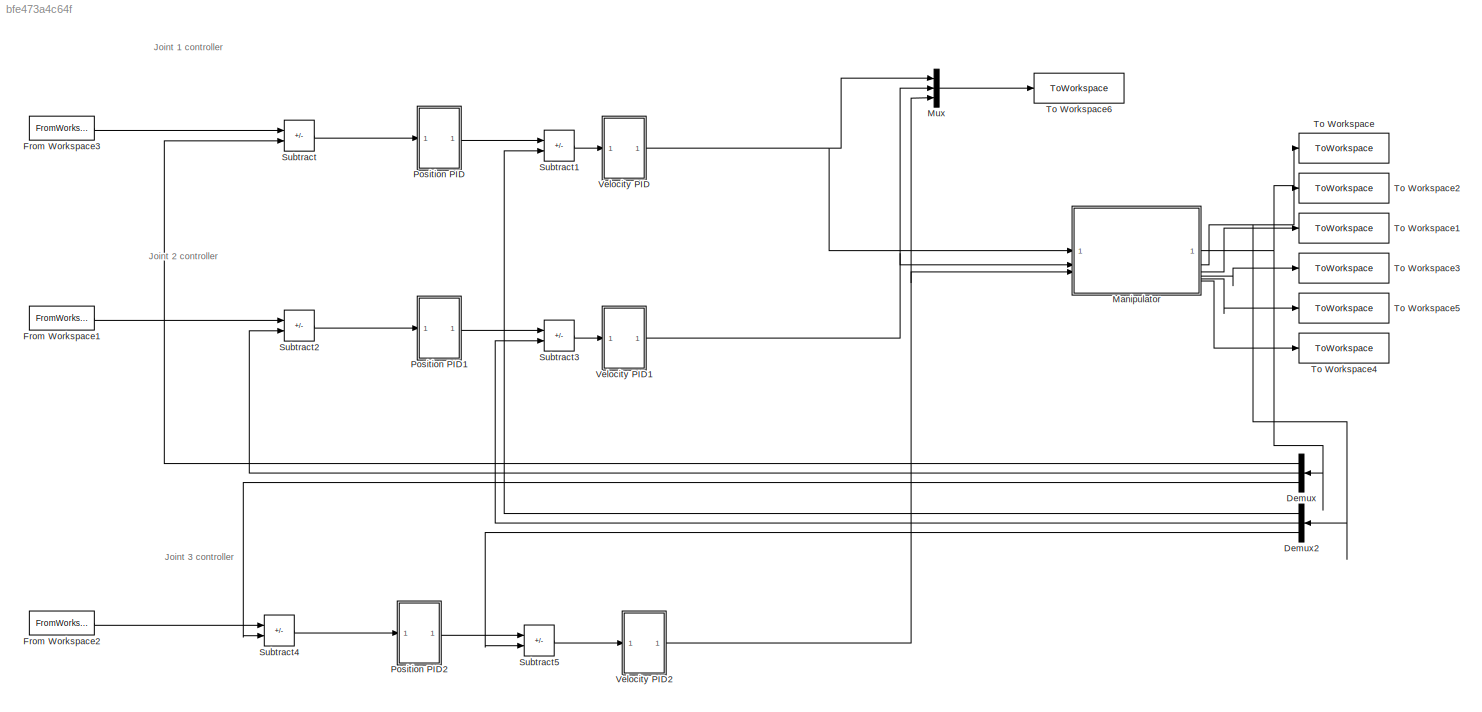
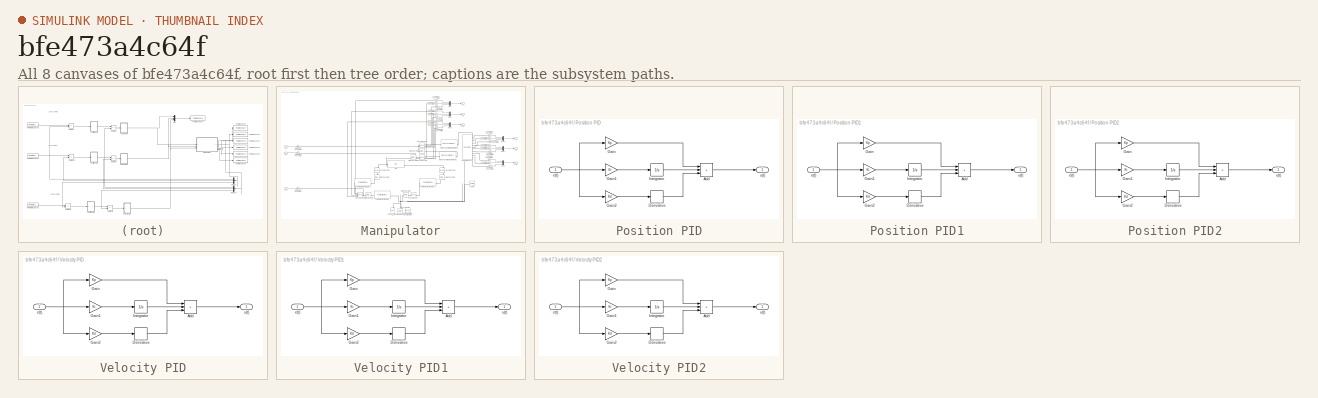
[diagram: thumbnail index - all 8 canvases of the model, root first then tree order]
MODEL slx_bfe473a4c64f
KIND model
CONFIG AbsTol = auto
CONFIG EnableMultiTasking = off
CONFIG FixedStep = dT
CONFIG MaxStep = auto
CONFIG MinStep = auto
CONFIG RelTol = 1e-3
CONFIG SampleTimeConstraint = Unconstrained
CONFIG SolverName = FixedStepAuto
CONFIG StartTime = 0.0
CONFIG StopTime = tt(end)
BLOCK [Demux] Demux
  NameLocation = top
  Outputs = 3
BLOCK [Demux] Demux2
  NameLocation = top
  Outputs = 3
BLOCK [FromWorkspace] From Workspace1
  VariableName = Q2sim
BLOCK [FromWorkspace] From Workspace2
  VariableName = Q3sim
BLOCK [FromWorkspace] From Workspace3
  VariableName = Q1sim
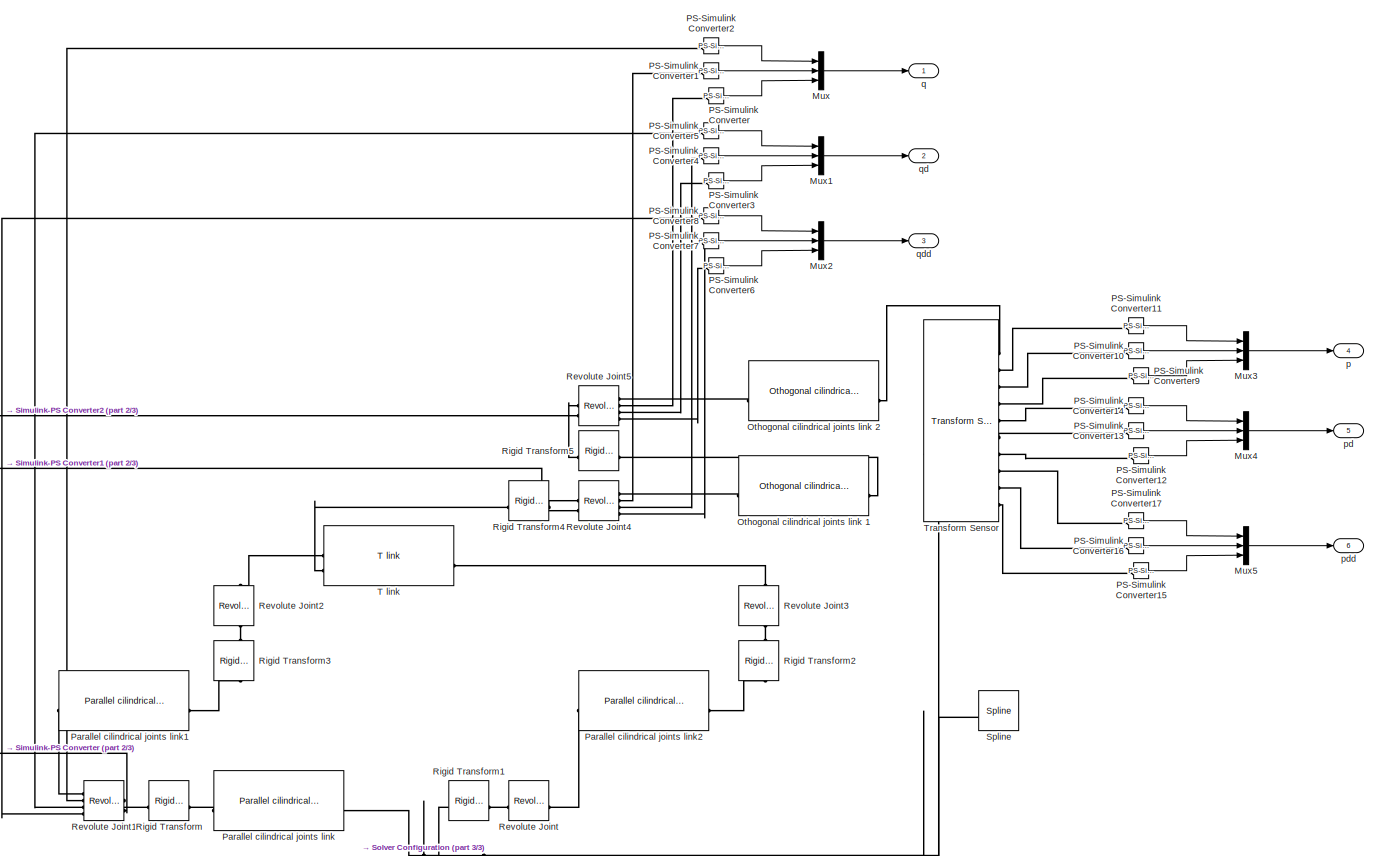
[diagram: Manipulator - part 1/3, center side, full height]
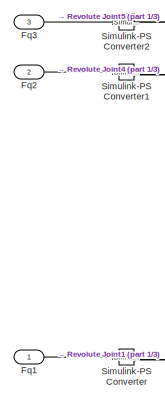
[diagram: Manipulator - part 2/3, middle left region]
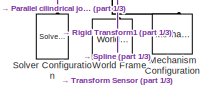
[diagram: Manipulator - part 3/3, bottom center region]
BLOCK [SubSystem] Manipulator
BLOCK [Inport] Manipulator/Fq1
BLOCK [Inport] Manipulator/Fq2
  Port = 2
BLOCK [Inport] Manipulator/Fq3
  Port = 3
BLOCK [Reference] Manipulator/Mechanism Configuration  REF=sm_lib/Utilities/Mechanism
Configuration
  NameLocation = right
  SourceBlock = sm_lib/Utilities/Mechanism\nConfiguration
  SourceType = Mechanism\nConfiguration
BLOCK [Mux] Manipulator/Mux
  DisplayOption = bar
  Inputs = 3
BLOCK [Mux] Manipulator/Mux1
  DisplayOption = bar
  Inputs = 3
BLOCK [Mux] Manipulator/Mux2
  DisplayOption = bar
  Inputs = 3
BLOCK [Mux] Manipulator/Mux3
  DisplayOption = bar
  Inputs = 3
BLOCK [Mux] Manipulator/Mux4
  DisplayOption = bar
  Inputs = 3
BLOCK [Mux] Manipulator/Mux5
  DisplayOption = bar
  Inputs = 3
BLOCK [Reference] Manipulator/Othogonal cilindrical joints link 1  REF=proj_lib/Othogonal cilindrical joints link2  (lib defined in slx_351c6c5c5e1b)
  SourceBlock = proj_lib/Othogonal cilindrical joints link2
BLOCK [Reference] Manipulator/Othogonal cilindrical joints link 2  REF=proj_lib/Othogonal cilindrical joints link2  (lib defined in slx_351c6c5c5e1b)
  SourceBlock = proj_lib/Othogonal cilindrical joints link2
BLOCK [Reference] Manipulator/PS-Simulink Converter  REF=nesl_utility/PS-Simulink
Converter
  SourceBlock = nesl_utility/PS-Simulink\nConverter
  SourceType = PS-Simulink\nConverter
BLOCK [Reference] Manipulator/PS-Simulink Converter1  REF=nesl_utility/PS-Simulink
Converter
  SourceBlock = nesl_utility/PS-Simulink\nConverter
  SourceType = PS-Simulink\nConverter
BLOCK [Reference] Manipulator/PS-Simulink Converter10  REF=nesl_utility/PS-Simulink
Converter
  SourceBlock = nesl_utility/PS-Simulink\nConverter
  SourceType = PS-Simulink\nConverter
BLOCK [Reference] Manipulator/PS-Simulink Converter11  REF=nesl_utility/PS-Simulink
Converter
  SourceBlock = nesl_utility/PS-Simulink\nConverter
  SourceType = PS-Simulink\nConverter
BLOCK [Reference] Manipulator/PS-Simulink Converter12  REF=nesl_utility/PS-Simulink
Converter
  SourceBlock = nesl_utility/PS-Simulink\nConverter
  SourceType = PS-Simulink\nConverter
BLOCK [Reference] Manipulator/PS-Simulink Converter13  REF=nesl_utility/PS-Simulink
Converter
  SourceBlock = nesl_utility/PS-Simulink\nConverter
  SourceType = PS-Simulink\nConverter
BLOCK [Reference] Manipulator/PS-Simulink Converter14  REF=nesl_utility/PS-Simulink
Converter
  SourceBlock = nesl_utility/PS-Simulink\nConverter
  SourceType = PS-Simulink\nConverter
BLOCK [Reference] Manipulator/PS-Simulink Converter15  REF=nesl_utility/PS-Simulink
Converter
  SourceBlock = nesl_utility/PS-Simulink\nConverter
  SourceType = PS-Simulink\nConverter
BLOCK [Reference] Manipulator/PS-Simulink Converter16  REF=nesl_utility/PS-Simulink
Converter
  SourceBlock = nesl_utility/PS-Simulink\nConverter
  SourceType = PS-Simulink\nConverter
BLOCK [Reference] Manipulator/PS-Simulink Converter17  REF=nesl_utility/PS-Simulink
Converter
  SourceBlock = nesl_utility/PS-Simulink\nConverter
  SourceType = PS-Simulink\nConverter
BLOCK [Reference] Manipulator/PS-Simulink Converter2  REF=nesl_utility/PS-Simulink
Converter
  SourceBlock = nesl_utility/PS-Simulink\nConverter
  SourceType = PS-Simulink\nConverter
BLOCK [Reference] Manipulator/PS-Simulink Converter3  REF=nesl_utility/PS-Simulink
Converter
  SourceBlock = nesl_utility/PS-Simulink\nConverter
  SourceType = PS-Simulink\nConverter
BLOCK [Reference] Manipulator/PS-Simulink Converter4  REF=nesl_utility/PS-Simulink
Converter
  SourceBlock = nesl_utility/PS-Simulink\nConverter
  SourceType = PS-Simulink\nConverter
BLOCK [Reference] Manipulator/PS-Simulink Converter5  REF=nesl_utility/PS-Simulink
Converter
  SourceBlock = nesl_utility/PS-Simulink\nConverter
  SourceType = PS-Simulink\nConverter
BLOCK [Reference] Manipulator/PS-Simulink Converter6  REF=nesl_utility/PS-Simulink
Converter
  SourceBlock = nesl_utility/PS-Simulink\nConverter
  SourceType = PS-Simulink\nConverter
BLOCK [Reference] Manipulator/PS-Simulink Converter7  REF=nesl_utility/PS-Simulink
Converter
  SourceBlock = nesl_utility/PS-Simulink\nConverter
  SourceType = PS-Simulink\nConverter
BLOCK [Reference] Manipulator/PS-Simulink Converter8  REF=nesl_utility/PS-Simulink
Converter
  SourceBlock = nesl_utility/PS-Simulink\nConverter
  SourceType = PS-Simulink\nConverter
BLOCK [Reference] Manipulator/PS-Simulink Converter9  REF=nesl_utility/PS-Simulink
Converter
  SourceBlock = nesl_utility/PS-Simulink\nConverter
  SourceType = PS-Simulink\nConverter
BLOCK [Reference] Manipulator/Parallel cilindrical joints link  REF=proj_lib/Parallel cilindrical joints link  (lib defined in slx_351c6c5c5e1b)
  NameLocation = top
  SourceBlock = proj_lib/Parallel cilindrical joints link
BLOCK [Reference] Manipulator/Parallel cilindrical joints link1  REF=proj_lib/Parallel cilindrical joints link  (lib defined in slx_351c6c5c5e1b)
  SourceBlock = proj_lib/Parallel cilindrical joints link
BLOCK [Reference] Manipulator/Parallel cilindrical joints link2  REF=proj_lib/Parallel cilindrical joints link  (lib defined in slx_351c6c5c5e1b)
  SourceBlock = proj_lib/Parallel cilindrical joints link
BLOCK [Reference] Manipulator/Revolute Joint  REF=sm_lib/Joints/Revolute Joint
  SourceBlock = sm_lib/Joints/Revolute Joint
  SourceType = Revolute Joint
BLOCK [Reference] Manipulator/Revolute Joint1  REF=sm_lib/Joints/Revolute Joint
  NameLocation = top
  SourceBlock = sm_lib/Joints/Revolute Joint
  SourceType = Revolute Joint
BLOCK [Reference] Manipulator/Revolute Joint2  REF=sm_lib/Joints/Revolute Joint
  NameLocation = right
  SourceBlock = sm_lib/Joints/Revolute Joint
  SourceType = Revolute Joint
BLOCK [Reference] Manipulator/Revolute Joint3  REF=sm_lib/Joints/Revolute Joint
  NameLocation = right
  SourceBlock = sm_lib/Joints/Revolute Joint
  SourceType = Revolute Joint
BLOCK [Reference] Manipulator/Revolute Joint4  REF=sm_lib/Joints/Revolute Joint
  SourceBlock = sm_lib/Joints/Revolute Joint
  SourceType = Revolute Joint
BLOCK [Reference] Manipulator/Revolute Joint5  REF=sm_lib/Joints/Revolute Joint
  SourceBlock = sm_lib/Joints/Revolute Joint
  SourceType = Revolute Joint
BLOCK [Reference] Manipulator/Rigid Transform  REF=sm_lib/Frames and
Transforms/Rigid
Transform
  NameLocation = top
  SourceBlock = sm_lib/Frames and\nTransforms/Rigid\nTransform
  SourceType = Rigid\nTransform
BLOCK [Reference] Manipulator/Rigid Transform1  REF=sm_lib/Frames and
Transforms/Rigid
Transform
  SourceBlock = sm_lib/Frames and\nTransforms/Rigid\nTransform
  SourceType = Rigid\nTransform
BLOCK [Reference] Manipulator/Rigid Transform2  REF=sm_lib/Frames and
Transforms/Rigid
Transform
  NameLocation = right
  SourceBlock = sm_lib/Frames and\nTransforms/Rigid\nTransform
  SourceType = Rigid\nTransform
BLOCK [Reference] Manipulator/Rigid Transform3  REF=sm_lib/Frames and
Transforms/Rigid
Transform
  NameLocation = right
  SourceBlock = sm_lib/Frames and\nTransforms/Rigid\nTransform
  SourceType = Rigid\nTransform
BLOCK [Reference] Manipulator/Rigid Transform4  REF=sm_lib/Frames and
Transforms/Rigid
Transform
  SourceBlock = sm_lib/Frames and\nTransforms/Rigid\nTransform
  SourceType = Rigid\nTransform
BLOCK [Reference] Manipulator/Rigid Transform5  REF=sm_lib/Frames and
Transforms/Rigid
Transform
  NameLocation = top
  SourceBlock = sm_lib/Frames and\nTransforms/Rigid\nTransform
  SourceType = Rigid\nTransform
BLOCK [Reference] Manipulator/Simulink-PS Converter  REF=nesl_utility/Simulink-PS
Converter
  SourceBlock = nesl_utility/Simulink-PS\nConverter
  SourceType = Simulink-PS\nConverter
BLOCK [Reference] Manipulator/Simulink-PS Converter1  REF=nesl_utility/Simulink-PS
Converter
  SourceBlock = nesl_utility/Simulink-PS\nConverter
  SourceType = Simulink-PS\nConverter
BLOCK [Reference] Manipulator/Simulink-PS Converter2  REF=nesl_utility/Simulink-PS
Converter
  SourceBlock = nesl_utility/Simulink-PS\nConverter
  SourceType = Simulink-PS\nConverter
BLOCK [Reference] Manipulator/Solver Configuration  REF=nesl_utility/Solver
Configuration
  NameLocation = right
  SourceBlock = nesl_utility/Solver\nConfiguration
  SourceType = Solver\nConfiguration
BLOCK [Reference] Manipulator/Spline  REF=sm_lib/Curves and Surfaces/Spline
  SourceBlock = sm_lib/Curves and Surfaces/Spline
  SourceType = Spline
BLOCK [Reference] Manipulator/T link  REF=proj_lib/T link  (lib defined in slx_351c6c5c5e1b)
  NameLocation = top
  SourceBlock = proj_lib/T link
BLOCK [Reference] Manipulator/Transform Sensor  REF=sm_lib/Frames and
Transforms/Transform
Sensor
  SourceBlock = sm_lib/Frames and\nTransforms/Transform\nSensor
  SourceType = Transform\nSensor
BLOCK [Reference] Manipulator/World Frame  REF=sm_lib/Frames and
Transforms/World Frame
  NameLocation = right
  SourceBlock = sm_lib/Frames and\nTransforms/World Frame
  SourceType = World Frame
BLOCK [Outport] Manipulator/p
  Port = 4
BLOCK [Outport] Manipulator/pd
  Port = 5
BLOCK [Outport] Manipulator/pdd
  Port = 6
BLOCK [Outport] Manipulator/q
BLOCK [Outport] Manipulator/qd
  Port = 2
BLOCK [Outport] Manipulator/qdd
  Port = 3
BLOCK [Mux] Mux
  DisplayOption = bar
  Inputs = 3
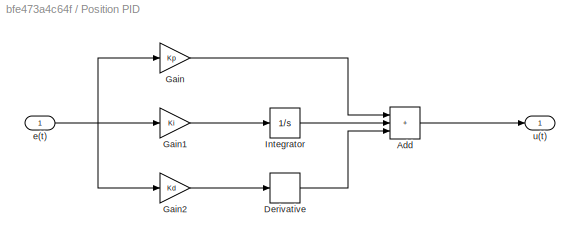
BLOCK [SubSystem] Position PID
  VariantControl = Choice
BLOCK [Sum] Position PID/Add
  IconShape = rectangular
  Inputs = +++
BLOCK [Derivative] Position PID/Derivative
BLOCK [Gain] Position PID/Gain
  Gain = Kp
BLOCK [Gain] Position PID/Gain1
  Gain = Ki
BLOCK [Gain] Position PID/Gain2
  Gain = Kd
BLOCK [Integrator] Position PID/Integrator
BLOCK [Inport] Position PID/e(t)
BLOCK [Outport] Position PID/u(t)
BLOCK [SubSystem] Position PID1
  VariantControl = Choice
BLOCK [Sum] Position PID1/Add
  IconShape = rectangular
  Inputs = +++
BLOCK [Derivative] Position PID1/Derivative
BLOCK [Gain] Position PID1/Gain
  Gain = Kp
BLOCK [Gain] Position PID1/Gain1
  Gain = Ki
BLOCK [Gain] Position PID1/Gain2
  Gain = Kd
BLOCK [Integrator] Position PID1/Integrator
BLOCK [Inport] Position PID1/e(t)
BLOCK [Outport] Position PID1/u(t)
BLOCK [SubSystem] Position PID2
  VariantControl = Choice
BLOCK [Sum] Position PID2/Add
  IconShape = rectangular
  Inputs = +++
BLOCK [Derivative] Position PID2/Derivative
BLOCK [Gain] Position PID2/Gain
  Gain = Kp
BLOCK [Gain] Position PID2/Gain1
  Gain = Ki
BLOCK [Gain] Position PID2/Gain2
  Gain = Kd
BLOCK [Integrator] Position PID2/Integrator
BLOCK [Inport] Position PID2/e(t)
BLOCK [Outport] Position PID2/u(t)
BLOCK [Sum] Subtract
  IconShape = rectangular
  Inputs = +-
BLOCK [Sum] Subtract1
  IconShape = rectangular
  Inputs = +-
BLOCK [Sum] Subtract2
  IconShape = rectangular
  Inputs = +-
BLOCK [Sum] Subtract3
  IconShape = rectangular
  Inputs = +-
BLOCK [Sum] Subtract4
  IconShape = rectangular
  Inputs = +-
BLOCK [Sum] Subtract5
  IconShape = rectangular
  Inputs = +-
BLOCK [ToWorkspace] To Workspace
  FixptAsFi = on
  MaxDataPoints = inf
  SampleTime = -1
  SaveFormat = Timeseries
  VariableName = q
BLOCK [ToWorkspace] To Workspace1
  FixptAsFi = on
  MaxDataPoints = inf
  SampleTime = -1
  SaveFormat = Timeseries
  VariableName = qdd
BLOCK [ToWorkspace] To Workspace2
  FixptAsFi = on
  MaxDataPoints = inf
  SampleTime = -1
  SaveFormat = Timeseries
  VariableName = qd
BLOCK [ToWorkspace] To Workspace3
  FixptAsFi = on
  MaxDataPoints = inf
  SampleTime = -1
  SaveFormat = Timeseries
  VariableName = p
BLOCK [ToWorkspace] To Workspace4
  FixptAsFi = on
  MaxDataPoints = inf
  SampleTime = -1
  SaveFormat = Timeseries
  VariableName = pdd
BLOCK [ToWorkspace] To Workspace5
  FixptAsFi = on
  MaxDataPoints = inf
  SampleTime = -1
  SaveFormat = Timeseries
  VariableName = pd
BLOCK [ToWorkspace] To Workspace6
  FixptAsFi = on
  MaxDataPoints = inf
  SampleTime = -1
  SaveFormat = Timeseries
  VariableName = Fq
BLOCK [SubSystem] Velocity PID
  VariantControl = Choice
BLOCK [Sum] Velocity PID/Add
  IconShape = rectangular
  Inputs = +++
BLOCK [Derivative] Velocity PID/Derivative
BLOCK [Gain] Velocity PID/Gain
  Gain = Kp
BLOCK [Gain] Velocity PID/Gain1
  Gain = Ki
BLOCK [Gain] Velocity PID/Gain2
  Gain = Kd
BLOCK [Integrator] Velocity PID/Integrator
BLOCK [Inport] Velocity PID/e(t)
BLOCK [Outport] Velocity PID/u(t)
BLOCK [SubSystem] Velocity PID1
  VariantControl = Choice
BLOCK [Sum] Velocity PID1/Add
  IconShape = rectangular
  Inputs = +++
BLOCK [Derivative] Velocity PID1/Derivative
BLOCK [Gain] Velocity PID1/Gain
  Gain = Kp
BLOCK [Gain] Velocity PID1/Gain1
  Gain = Ki
BLOCK [Gain] Velocity PID1/Gain2
  Gain = Kd
BLOCK [Integrator] Velocity PID1/Integrator
BLOCK [Inport] Velocity PID1/e(t)
BLOCK [Outport] Velocity PID1/u(t)
BLOCK [SubSystem] Velocity PID2
  VariantControl = Choice
BLOCK [Sum] Velocity PID2/Add
  IconShape = rectangular
  Inputs = +++
BLOCK [Derivative] Velocity PID2/Derivative
BLOCK [Gain] Velocity PID2/Gain
  Gain = Kp
BLOCK [Gain] Velocity PID2/Gain1
  Gain = Ki
BLOCK [Gain] Velocity PID2/Gain2
  Gain = Kd
BLOCK [Integrator] Velocity PID2/Integrator
BLOCK [Inport] Velocity PID2/e(t)
BLOCK [Outport] Velocity PID2/u(t)
ANNOTATION (root): Joint 1 controller
ANNOTATION (root): Joint 2 controller
ANNOTATION (root): Joint 3 controller
LINE Demux2:1 -> Subtract1:2
LINE Demux2:2 -> Subtract3:2
LINE Demux2:3 -> Subtract5:2
LINE Demux:1 -> Subtract:2
LINE Demux:2 -> Subtract2:2
LINE Demux:3 -> Subtract4:2
LINE From Workspace1:1 -> Subtract2:1
LINE From Workspace2:1 -> Subtract4:1
LINE From Workspace3:1 -> Subtract:1
LINE Manipulator/Fq1:1 -> Manipulator/Simulink-PS Converter:1
LINE Manipulator/Fq2:1 -> Manipulator/Simulink-PS Converter1:1
LINE Manipulator/Fq3:1 -> Manipulator/Simulink-PS Converter2:1
LINE Manipulator/Mux1:1 -> Manipulator/qd:1
LINE Manipulator/Mux2:1 -> Manipulator/qdd:1
LINE Manipulator/Mux3:1 -> Manipulator/p:1
LINE Manipulator/Mux4:1 -> Manipulator/pd:1
LINE Manipulator/Mux5:1 -> Manipulator/pdd:1
LINE Manipulator/Mux:1 -> Manipulator/q:1
LINE Manipulator/PS-Simulink Converter10:1 -> Manipulator/Mux3:2
LINE Manipulator/PS-Simulink Converter11:1 -> Manipulator/Mux3:1
LINE Manipulator/PS-Simulink Converter12:1 -> Manipulator/Mux4:3
LINE Manipulator/PS-Simulink Converter13:1 -> Manipulator/Mux4:2
LINE Manipulator/PS-Simulink Converter14:1 -> Manipulator/Mux4:1
LINE Manipulator/PS-Simulink Converter15:1 -> Manipulator/Mux5:3
LINE Manipulator/PS-Simulink Converter16:1 -> Manipulator/Mux5:2
LINE Manipulator/PS-Simulink Converter17:1 -> Manipulator/Mux5:1
LINE Manipulator/PS-Simulink Converter1:1 -> Manipulator/Mux:2
LINE Manipulator/PS-Simulink Converter2:1 -> Manipulator/Mux:1
LINE Manipulator/PS-Simulink Converter3:1 -> Manipulator/Mux1:3
LINE Manipulator/PS-Simulink Converter4:1 -> Manipulator/Mux1:2
LINE Manipulator/PS-Simulink Converter5:1 -> Manipulator/Mux1:1
LINE Manipulator/PS-Simulink Converter6:1 -> Manipulator/Mux2:3
LINE Manipulator/PS-Simulink Converter7:1 -> Manipulator/Mux2:2
LINE Manipulator/PS-Simulink Converter8:1 -> Manipulator/Mux2:1
LINE Manipulator/PS-Simulink Converter9:1 -> Manipulator/Mux3:3
LINE Manipulator/PS-Simulink Converter:1 -> Manipulator/Mux:3
NET Manipulator:1 -> Demux:1, To Workspace:1
NET Manipulator:2 -> Demux2:1, To Workspace2:1
LINE Manipulator:3 -> To Workspace1:1
LINE Manipulator:4 -> To Workspace3:1
LINE Manipulator:5 -> To Workspace5:1
LINE Manipulator:6 -> To Workspace4:1
LINE Mux:1 -> To Workspace6:1
LINE Position PID/Add:1 -> Position PID/u(t):1
LINE Position PID/Derivative:1 -> Position PID/Add:3
LINE Position PID/Gain1:1 -> Position PID/Integrator:1
LINE Position PID/Gain2:1 -> Position PID/Derivative:1
LINE Position PID/Gain:1 -> Position PID/Add:1
LINE Position PID/Integrator:1 -> Position PID/Add:2
NET Position PID/e(t):1 -> Position PID/Gain1:1, Position PID/Gain2:1, Position PID/Gain:1
LINE Position PID1/Add:1 -> Position PID1/u(t):1
LINE Position PID1/Derivative:1 -> Position PID1/Add:3
LINE Position PID1/Gain1:1 -> Position PID1/Integrator:1
LINE Position PID1/Gain2:1 -> Position PID1/Derivative:1
LINE Position PID1/Gain:1 -> Position PID1/Add:1
LINE Position PID1/Integrator:1 -> Position PID1/Add:2
NET Position PID1/e(t):1 -> Position PID1/Gain1:1, Position PID1/Gain2:1, Position PID1/Gain:1
LINE Position PID1:1 -> Subtract3:1
LINE Position PID2/Add:1 -> Position PID2/u(t):1
LINE Position PID2/Derivative:1 -> Position PID2/Add:3
LINE Position PID2/Gain1:1 -> Position PID2/Integrator:1
LINE Position PID2/Gain2:1 -> Position PID2/Derivative:1
LINE Position PID2/Gain:1 -> Position PID2/Add:1
LINE Position PID2/Integrator:1 -> Position PID2/Add:2
NET Position PID2/e(t):1 -> Position PID2/Gain1:1, Position PID2/Gain2:1, Position PID2/Gain:1
LINE Position PID2:1 -> Subtract5:1
LINE Position PID:1 -> Subtract1:1
LINE Subtract1:1 -> Velocity PID:1
LINE Subtract2:1 -> Position PID1:1
LINE Subtract3:1 -> Velocity PID1:1
LINE Subtract4:1 -> Position PID2:1
LINE Subtract5:1 -> Velocity PID2:1
LINE Subtract:1 -> Position PID:1
LINE Velocity PID/Add:1 -> Velocity PID/u(t):1
LINE Velocity PID/Derivative:1 -> Velocity PID/Add:3
LINE Velocity PID/Gain1:1 -> Velocity PID/Integrator:1
LINE Velocity PID/Gain2:1 -> Velocity PID/Derivative:1
LINE Velocity PID/Gain:1 -> Velocity PID/Add:1
LINE Velocity PID/Integrator:1 -> Velocity PID/Add:2
NET Velocity PID/e(t):1 -> Velocity PID/Gain1:1, Velocity PID/Gain2:1, Velocity PID/Gain:1
LINE Velocity PID1/Add:1 -> Velocity PID1/u(t):1
LINE Velocity PID1/Derivative:1 -> Velocity PID1/Add:3
LINE Velocity PID1/Gain1:1 -> Velocity PID1/Integrator:1
LINE Velocity PID1/Gain2:1 -> Velocity PID1/Derivative:1
LINE Velocity PID1/Gain:1 -> Velocity PID1/Add:1
LINE Velocity PID1/Integrator:1 -> Velocity PID1/Add:2
NET Velocity PID1/e(t):1 -> Velocity PID1/Gain1:1, Velocity PID1/Gain2:1, Velocity PID1/Gain:1
NET Velocity PID1:1 -> Manipulator:2, Mux:2
LINE Velocity PID2/Add:1 -> Velocity PID2/u(t):1
LINE Velocity PID2/Derivative:1 -> Velocity PID2/Add:3
LINE Velocity PID2/Gain1:1 -> Velocity PID2/Integrator:1
LINE Velocity PID2/Gain2:1 -> Velocity PID2/Derivative:1
LINE Velocity PID2/Gain:1 -> Velocity PID2/Add:1
LINE Velocity PID2/Integrator:1 -> Velocity PID2/Add:2
NET Velocity PID2/e(t):1 -> Velocity PID2/Gain1:1, Velocity PID2/Gain2:1, Velocity PID2/Gain:1
NET Velocity PID2:1 -> Manipulator:3, Mux:3
NET Velocity PID:1 -> Manipulator:1, Mux:1
PNET net1: Manipulator/Mechanism Configuration:RConn1 -- Manipulator/Parallel cilindrical joints link:LConn1 -- Manipulator/Rigid Transform1:LConn1 -- Manipulator/Solver Configuration:RConn1 -- Manipulator/Spline:LConn1 -- Manipulator/Transform Sensor:LConn1 -- Manipulator/World Frame:RConn1
PLINE Manipulator/Othogonal cilindrical joints link 1:LConn1 -- Manipulator/Revolute Joint4:RConn1
PLINE Manipulator/Othogonal cilindrical joints link 1:RConn1 -- Manipulator/Rigid Transform5:LConn1
PLINE Manipulator/Othogonal cilindrical joints link 2:LConn1 -- Manipulator/Revolute Joint5:RConn1
PLINE Manipulator/Othogonal cilindrical joints link 2:RConn1 -- Manipulator/Transform Sensor:RConn1
PLINE Manipulator/PS-Simulink Converter10:LConn1 -- Manipulator/Transform Sensor:RConn3
PLINE Manipulator/PS-Simulink Converter11:LConn1 -- Manipulator/Transform Sensor:RConn2
PLINE Manipulator/PS-Simulink Converter12:LConn1 -- Manipulator/Transform Sensor:RConn7
PLINE Manipulator/PS-Simulink Converter13:LConn1 -- Manipulator/Transform Sensor:RConn6
PLINE Manipulator/PS-Simulink Converter14:LConn1 -- Manipulator/Transform Sensor:RConn5
PLINE Manipulator/PS-Simulink Converter15:LConn1 -- Manipulator/Transform Sensor:RConn10
PLINE Manipulator/PS-Simulink Converter16:LConn1 -- Manipulator/Transform Sensor:RConn9
PLINE Manipulator/PS-Simulink Converter17:LConn1 -- Manipulator/Transform Sensor:RConn8
PLINE Manipulator/PS-Simulink Converter1:LConn1 -- Manipulator/Revolute Joint4:RConn2
PLINE Manipulator/PS-Simulink Converter2:LConn1 -- Manipulator/Revolute Joint1:RConn2
PLINE Manipulator/PS-Simulink Converter3:LConn1 -- Manipulator/Revolute Joint5:RConn3
PLINE Manipulator/PS-Simulink Converter4:LConn1 -- Manipulator/Revolute Joint4:RConn3
PLINE Manipulator/PS-Simulink Converter5:LConn1 -- Manipulator/Revolute Joint1:RConn3
PLINE Manipulator/PS-Simulink Converter6:LConn1 -- Manipulator/Revolute Joint5:RConn4
PLINE Manipulator/PS-Simulink Converter7:LConn1 -- Manipulator/Revolute Joint4:RConn4
PLINE Manipulator/PS-Simulink Converter8:LConn1 -- Manipulator/Revolute Joint1:RConn4
PLINE Manipulator/PS-Simulink Converter9:LConn1 -- Manipulator/Transform Sensor:RConn4
PLINE Manipulator/PS-Simulink Converter:LConn1 -- Manipulator/Revolute Joint5:RConn2
PLINE Manipulator/Parallel cilindrical joints link1:LConn1 -- Manipulator/Revolute Joint1:RConn1
PLINE Manipulator/Parallel cilindrical joints link1:RConn1 -- Manipulator/Rigid Transform3:LConn1
PLINE Manipulator/Parallel cilindrical joints link2:LConn1 -- Manipulator/Revolute Joint:RConn1
PLINE Manipulator/Parallel cilindrical joints link2:RConn1 -- Manipulator/Rigid Transform2:LConn1
PLINE Manipulator/Parallel cilindrical joints link:RConn1 -- Manipulator/Rigid Transform:LConn1
PLINE Manipulator/Revolute Joint1:LConn1 -- Manipulator/Rigid Transform:RConn1
PLINE Manipulator/Revolute Joint1:LConn2 -- Manipulator/Simulink-PS Converter:RConn1
PLINE Manipulator/Revolute Joint2:LConn1 -- Manipulator/Rigid Transform3:RConn1
PLINE Manipulator/Revolute Joint2:RConn1 -- Manipulator/T link:RConn1
PLINE Manipulator/Revolute Joint3:LConn1 -- Manipulator/Rigid Transform2:RConn1
PLINE Manipulator/Revolute Joint3:RConn1 -- Manipulator/T link:LConn1
PLINE Manipulator/Revolute Joint4:LConn1 -- Manipulator/Rigid Transform4:RConn1
PLINE Manipulator/Revolute Joint4:LConn2 -- Manipulator/Simulink-PS Converter1:RConn1
PLINE Manipulator/Revolute Joint5:LConn1 -- Manipulator/Rigid Transform5:RConn1
PLINE Manipulator/Revolute Joint5:LConn2 -- Manipulator/Simulink-PS Converter2:RConn1
PLINE Manipulator/Revolute Joint:LConn1 -- Manipulator/Rigid Transform1:RConn1
PLINE Manipulator/Rigid Transform4:LConn1 -- Manipulator/T link:RConn2
note: NET lines group one-source signal fan-out (src -> all destinations, sorted); 1:1 wires keep LINE; PNET lines group multi-terminal physical nets as a canonical sorted terminal list (undirected conserving connections); 2-terminal nets keep the pairwise PLINE form
